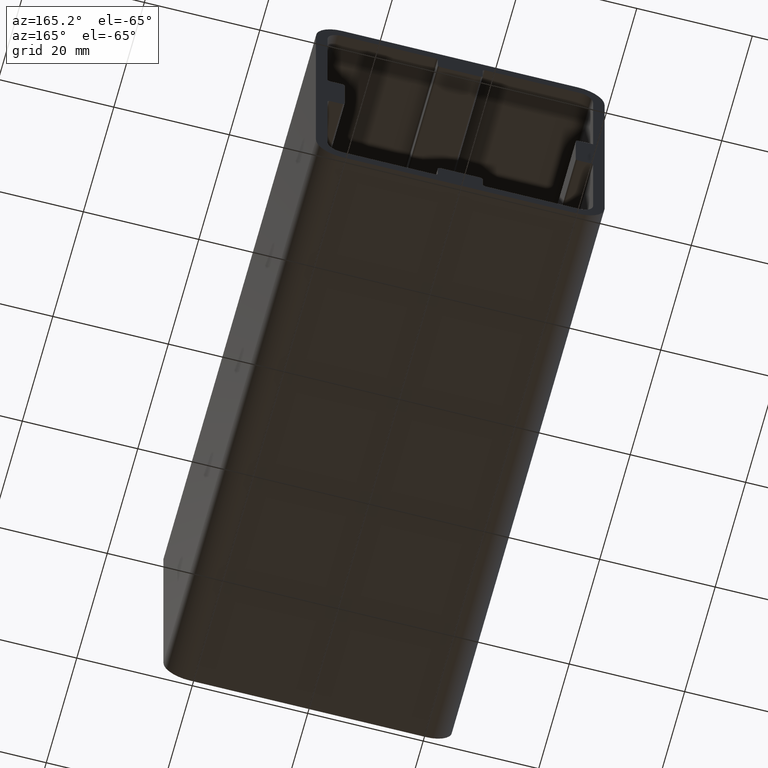
[diagram: clean part render]
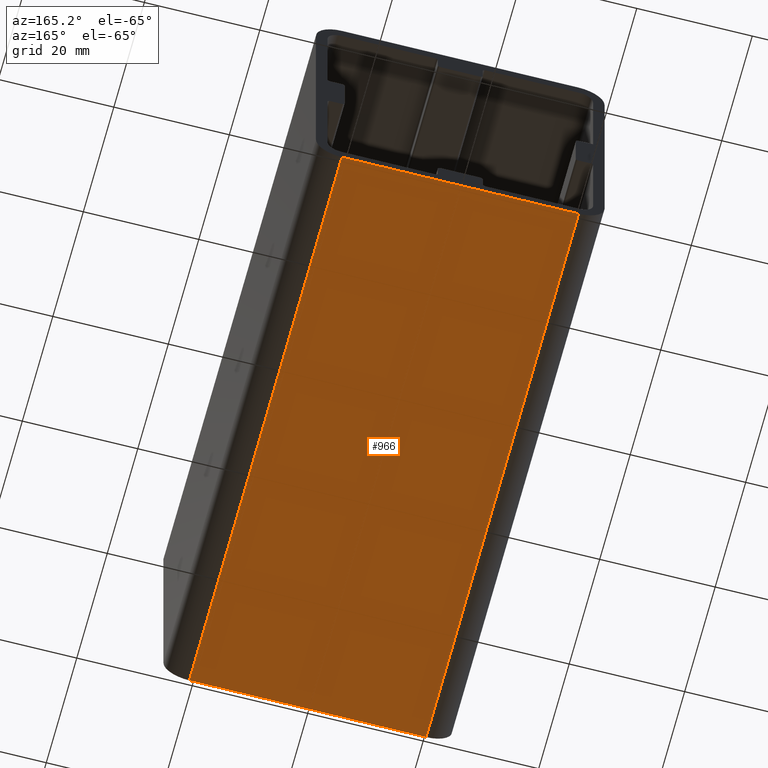
[diagram: same view with one face highlighted and labeled with its STEP entity id]
A machine part, auxiliary view. The second image highlights one B-rep face of the part: STEP entity #966.
In plain terms, the highlighted planar face has unit normal (0, 0, -1).
Its self-contained STEP definition (entity closure, byte-faithful):
#41=PLANE('',#1081);
#90=FACE_OUTER_BOUND('',#141,.T.);
#141=EDGE_LOOP('',(#888,#889,#890,#891));
#143=LINE('',#1376,#238);
#148=LINE('',#1393,#243);
#173=LINE('',#1485,#268);
#174=LINE('',#1487,#269);
#238=VECTOR('',#1089,10.);
#243=VECTOR('',#1104,10.);
#268=VECTOR('',#1177,10.);
#269=VECTOR('',#1180,10.);
#380=VERTEX_POINT('',#1373);
#381=VERTEX_POINT('',#1375);
#388=VERTEX_POINT('',#1391);
#431=VERTEX_POINT('',#1483);
#474=EDGE_CURVE('',#380,#381,#143,.T.);
#483=EDGE_CURVE('',#388,#380,#148,.T.);
#529=EDGE_CURVE('',#431,#388,#173,.T.);
#530=EDGE_CURVE('',#431,#381,#174,.T.);
#888=ORIENTED_EDGE('',*,*,#474,.F.);
#889=ORIENTED_EDGE('',*,*,#483,.F.);
#890=ORIENTED_EDGE('',*,*,#529,.F.);
#891=ORIENTED_EDGE('',*,*,#530,.T.);
#966=ADVANCED_FACE('',(#90),#41,.T.);
#1081=AXIS2_PLACEMENT_3D('',#1653,#1366,#1367);
#1089=DIRECTION('',(0.,-1.,0.));
#1104=DIRECTION('',(-1.,0.,0.));
#1177=DIRECTION('',(0.,1.,0.));
#1180=DIRECTION('',(-1.,0.,0.));
#1366=DIRECTION('center_axis',(0.,0.,-1.));
#1367=DIRECTION('ref_axis',(-1.,0.,0.));
#1373=CARTESIAN_POINT('',(-20.5,100.,-25.));
#1375=CARTESIAN_POINT('',(-20.5,0.,-25.));
#1376=CARTESIAN_POINT('',(-20.5,0.,-25.));
#1391=CARTESIAN_POINT('',(20.5,100.,-25.));
#1393=CARTESIAN_POINT('',(25.,100.,-25.));
#1483=CARTESIAN_POINT('',(20.5,0.,-25.));
#1485=CARTESIAN_POINT('',(20.5,0.,-25.));
#1487=CARTESIAN_POINT('',(25.,0.,-25.));
#1653=CARTESIAN_POINT('Origin',(25.,0.,-25.));